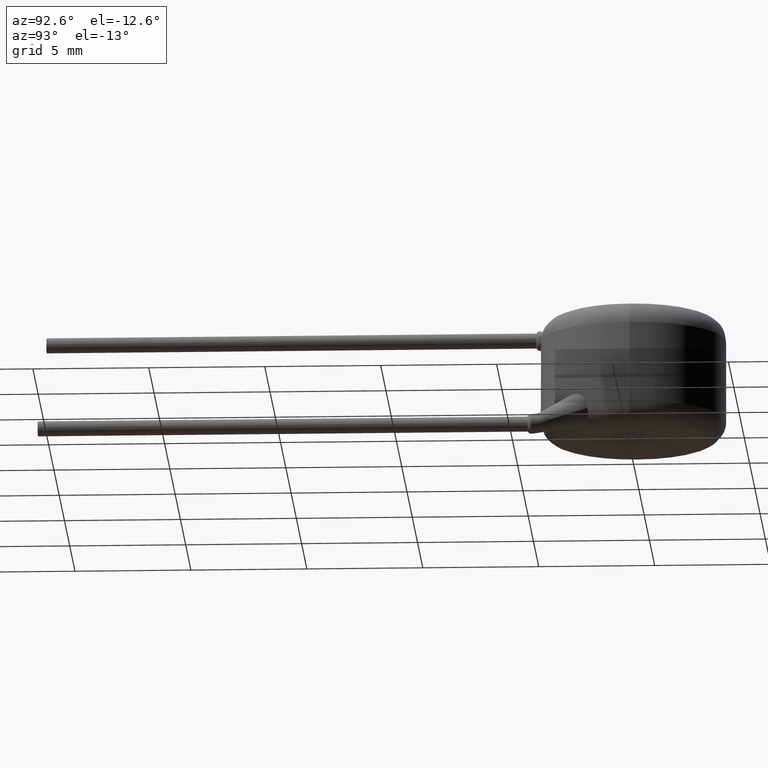
[diagram: clean part render]
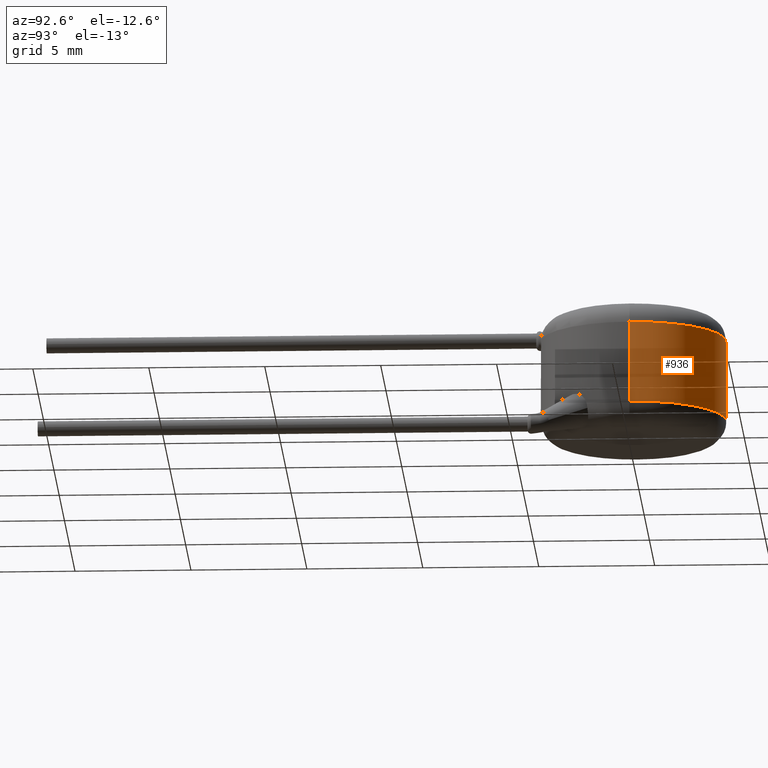
[diagram: same view with one face highlighted and labeled with its STEP entity id]
A machine part, auxiliary view. The second image highlights one B-rep face of the part: STEP entity #936.
In plain terms, the highlighted cylindrical surface (partial cylindrical patch) has radius 4 mm, axis along (-0, -0, -1).
Its self-contained STEP definition (entity closure, byte-faithful):
#29 = EDGE_CURVE ( 'NONE', #3965, #3223, #3645, .T. ) ;
#80 = DIRECTION ( 'NONE',  ( 1.000000000000000000, 0.0000000000000000000, 0.0000000000000000000 ) ) ;
#178 = CIRCLE ( 'NONE', #3603, 4.000000000000000000 ) ;
#246 = CARTESIAN_POINT ( 'NONE',  ( -4.000000000000000000, 0.0000000000000000000, 1.000000000000000000 ) ) ;
#333 = CYLINDRICAL_SURFACE ( 'NONE', #3602, 4.000000000000000000 ) ;
#661 = EDGE_CURVE ( 'NONE', #3223, #3675, #178, .T. ) ;
#804 = LINE ( 'NONE', #916, #4002 ) ;
#809 = EDGE_CURVE ( 'NONE', #2154, #3965, #1073, .T. ) ;
#916 = CARTESIAN_POINT ( 'NONE',  ( -4.000000000000000000, 0.0000000000000000000, 5.500000000000000000 ) ) ;
#936 = ADVANCED_FACE ( 'NONE', ( #2858 ), #333, .T. ) ;
#1057 = DIRECTION ( 'NONE',  ( 1.000000000000000000, 0.0000000000000000000, 0.0000000000000000000 ) ) ;
#1073 = CIRCLE ( 'NONE', #1330, 4.000000000000000000 ) ;
#1094 = CARTESIAN_POINT ( 'NONE',  ( 0.0000000000000000000, 0.0000000000000000000, 4.500000000000000000 ) ) ;
#1151 = DIRECTION ( 'NONE',  ( -1.000000000000000000, 0.0000000000000000000, 0.0000000000000000000 ) ) ;
#1270 = CARTESIAN_POINT ( 'NONE',  ( -4.000000000000000000, 0.0000000000000000000, 4.500000000000000000 ) ) ;
#1330 = AXIS2_PLACEMENT_3D ( 'NONE', #1094, #2712, #80 ) ;
#1346 = ORIENTED_EDGE ( 'NONE', *, *, #1419, .F. ) ;
#1419 = EDGE_CURVE ( 'NONE', #2154, #3675, #804, .T. ) ;
#1713 = CARTESIAN_POINT ( 'NONE',  ( 4.000000000000000000, 4.898587196589412800E-016, 5.500000000000000000 ) ) ;
#1926 = ORIENTED_EDGE ( 'NONE', *, *, #809, .T. ) ;
#2154 = VERTEX_POINT ( 'NONE', #1270 ) ;
#2216 = DIRECTION ( 'NONE',  ( -0.0000000000000000000, -0.0000000000000000000, -1.000000000000000000 ) ) ;
#2518 = ORIENTED_EDGE ( 'NONE', *, *, #29, .T. ) ;
#2686 = DIRECTION ( 'NONE',  ( -0.0000000000000000000, -0.0000000000000000000, -1.000000000000000000 ) ) ;
#2712 = DIRECTION ( 'NONE',  ( -0.0000000000000000000, -0.0000000000000000000, -1.000000000000000000 ) ) ;
#2731 = EDGE_LOOP ( 'NONE', ( #1926, #2518, #3701, #1346 ) ) ;
#2781 = CARTESIAN_POINT ( 'NONE',  ( 0.0000000000000000000, 0.0000000000000000000, 5.500000000000000000 ) ) ;
#2796 = DIRECTION ( 'NONE',  ( -0.0000000000000000000, -0.0000000000000000000, -1.000000000000000000 ) ) ;
#2858 = FACE_OUTER_BOUND ( 'NONE', #2731, .T. ) ;
#3061 = DIRECTION ( 'NONE',  ( 0.0000000000000000000, 0.0000000000000000000, 1.000000000000000000 ) ) ;
#3223 = VERTEX_POINT ( 'NONE', #4273 ) ;
#3602 = AXIS2_PLACEMENT_3D ( 'NONE', #2781, #2796, #1151 ) ;
#3603 = AXIS2_PLACEMENT_3D ( 'NONE', #4042, #3061, #1057 ) ;
#3645 = LINE ( 'NONE', #1713, #4009 ) ;
#3675 = VERTEX_POINT ( 'NONE', #246 ) ;
#3701 = ORIENTED_EDGE ( 'NONE', *, *, #661, .T. ) ;
#3965 = VERTEX_POINT ( 'NONE', #4218 ) ;
#4002 = VECTOR ( 'NONE', #2216, 1000.000000000000000 ) ;
#4009 = VECTOR ( 'NONE', #2686, 1000.000000000000000 ) ;
#4042 = CARTESIAN_POINT ( 'NONE',  ( 0.0000000000000000000, 0.0000000000000000000, 1.000000000000000000 ) ) ;
#4218 = CARTESIAN_POINT ( 'NONE',  ( 4.000000000000000000, 4.898587196589412800E-016, 4.500000000000000000 ) ) ;
#4273 = CARTESIAN_POINT ( 'NONE',  ( 4.000000000000000000, 4.898587196589412800E-016, 1.000000000000000000 ) ) ;